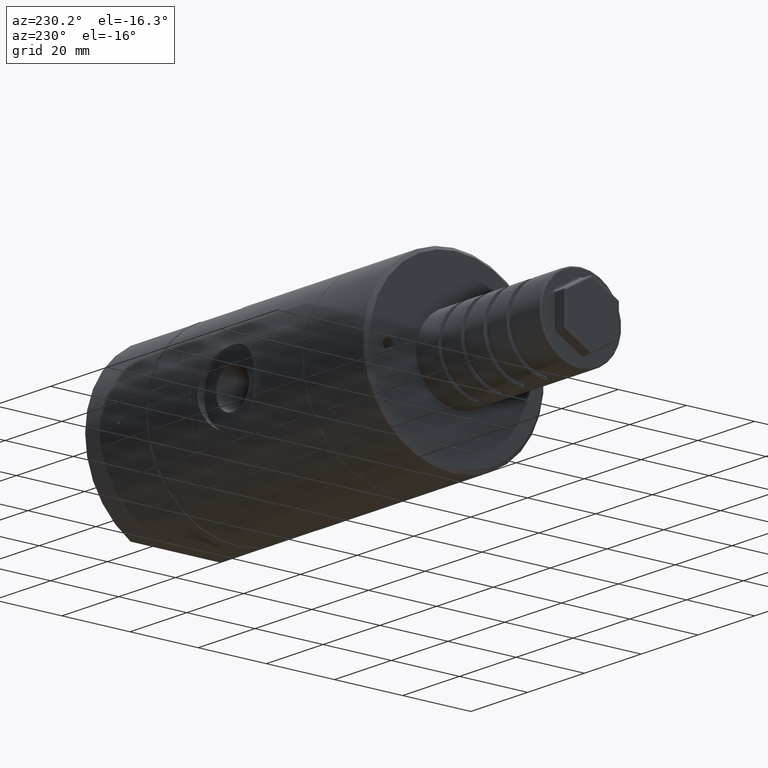
[diagram: clean part render]
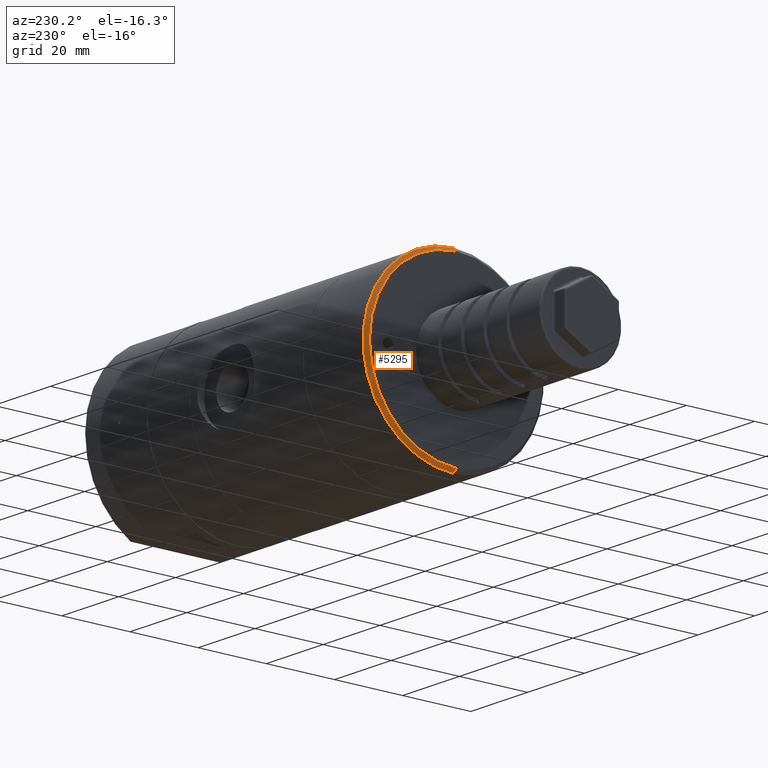
[diagram: same view with one face highlighted and labeled with its STEP entity id]
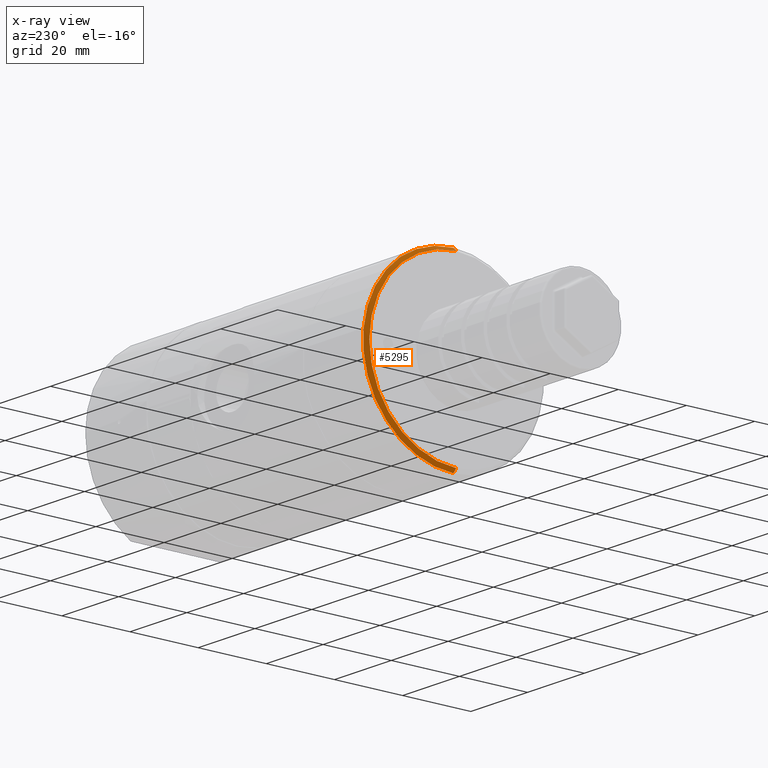
[diagram: x-ray of the same camera — body ghosted, the highlighted face saturated]
A machine part, auxiliary view. The second image highlights one B-rep face of the part: STEP entity #5295.
The next image is the same camera in x-ray: the body ghosted, the highlighted face saturated — about 0% of this face is hidden behind the body in this view.
In plain terms, the highlighted conical surface has half-angle 45 deg.
Its self-contained STEP definition (entity closure, byte-faithful):
#698 = CARTESIAN_POINT ( 'NONE',  ( -98.90000000000000600, 0.0000000000000000000, -25.50000000000000000 ) ) ;
#1150 = CARTESIAN_POINT ( 'NONE',  ( -98.90000000000000600, 3.184081677783118200E-015, 25.50000000000000000 ) ) ;
#1286 = CONICAL_SURFACE ( 'NONE', #15816, 26.50000000000000000, 0.7853981633974518300 ) ;
#1858 = EDGE_CURVE ( 'NONE', #12606, #12855, #15292, .T. ) ;
#2674 = AXIS2_PLACEMENT_3D ( 'NONE', #3648, #13643, #10386 ) ;
#2710 = EDGE_CURVE ( 'NONE', #12606, #18026, #7263, .T. ) ;
#3648 = CARTESIAN_POINT ( 'NONE',  ( -97.90000000000000600, 0.0000000000000000000, 0.0000000000000000000 ) ) ;
#4237 = CIRCLE ( 'NONE', #2674, 26.50000000000000000 ) ;
#4444 = LINE ( 'NONE', #16039, #19961 ) ;
#5144 = DIRECTION ( 'NONE',  ( 1.000000000000000000, 0.0000000000000000000, 0.0000000000000000000 ) ) ;
#5295 = ADVANCED_FACE ( 'NONE', ( #18580 ), #1286, .T. ) ;
#5664 = CARTESIAN_POINT ( 'NONE',  ( -98.90000000000000600, 0.0000000000000000000, 0.0000000000000000000 ) ) ;
#7263 = CIRCLE ( 'NONE', #12617, 25.50000000000000000 ) ;
#7711 = DIRECTION ( 'NONE',  ( 0.7071067811865450200, 0.0000000000000000000, -0.7071067811865500200 ) ) ;
#8450 = CARTESIAN_POINT ( 'NONE',  ( -97.90000000000000600, 3.245314017740485800E-015, 26.50000000000000000 ) ) ;
#9593 = ORIENTED_EDGE ( 'NONE', *, *, #12297, .F. ) ;
#10386 = DIRECTION ( 'NONE',  ( 0.0000000000000000000, 0.0000000000000000000, 1.000000000000000000 ) ) ;
#12297 = EDGE_CURVE ( 'NONE', #19358, #12855, #4237, .T. ) ;
#12308 = ORIENTED_EDGE ( 'NONE', *, *, #2710, .F. ) ;
#12560 = EDGE_CURVE ( 'NONE', #18026, #19358, #4444, .T. ) ;
#12606 = VERTEX_POINT ( 'NONE', #1150 ) ;
#12617 = AXIS2_PLACEMENT_3D ( 'NONE', #5664, #17164, #19087 ) ;
#12748 = DIRECTION ( 'NONE',  ( 0.7071067811865450200, 8.659560562354963700E-017, 0.7071067811865500200 ) ) ;
#12855 = VERTEX_POINT ( 'NONE', #8450 ) ;
#13475 = CARTESIAN_POINT ( 'NONE',  ( -97.90000000000000600, 0.0000000000000000000, 0.0000000000000000000 ) ) ;
#13643 = DIRECTION ( 'NONE',  ( 1.000000000000000000, -0.0000000000000000000, -0.0000000000000000000 ) ) ;
#14764 = ORIENTED_EDGE ( 'NONE', *, *, #12560, .F. ) ;
#15292 = LINE ( 'NONE', #20992, #20198 ) ;
#15352 = DIRECTION ( 'NONE',  ( 0.0000000000000000000, 0.0000000000000000000, -1.000000000000000000 ) ) ;
#15816 = AXIS2_PLACEMENT_3D ( 'NONE', #13475, #5144, #15352 ) ;
#16039 = CARTESIAN_POINT ( 'NONE',  ( -97.90000000000000600, 0.0000000000000000000, -26.50000000000000000 ) ) ;
#16198 = CARTESIAN_POINT ( 'NONE',  ( -97.90000000000000600, 0.0000000000000000000, -26.50000000000000000 ) ) ;
#17093 = EDGE_LOOP ( 'NONE', ( #12308, #21156, #9593, #14764 ) ) ;
#17164 = DIRECTION ( 'NONE',  ( -1.000000000000000000, 0.0000000000000000000, 0.0000000000000000000 ) ) ;
#18026 = VERTEX_POINT ( 'NONE', #698 ) ;
#18580 = FACE_OUTER_BOUND ( 'NONE', #17093, .T. ) ;
#19087 = DIRECTION ( 'NONE',  ( 0.0000000000000000000, 0.0000000000000000000, 1.000000000000000000 ) ) ;
#19358 = VERTEX_POINT ( 'NONE', #16198 ) ;
#19961 = VECTOR ( 'NONE', #7711, 1000.000000000000000 ) ;
#20198 = VECTOR ( 'NONE', #12748, 1000.000000000000000 ) ;
#20992 = CARTESIAN_POINT ( 'NONE',  ( -97.90000000000000600, 3.245314017740485800E-015, 26.50000000000000000 ) ) ;
#21156 = ORIENTED_EDGE ( 'NONE', *, *, #1858, .T. ) ;